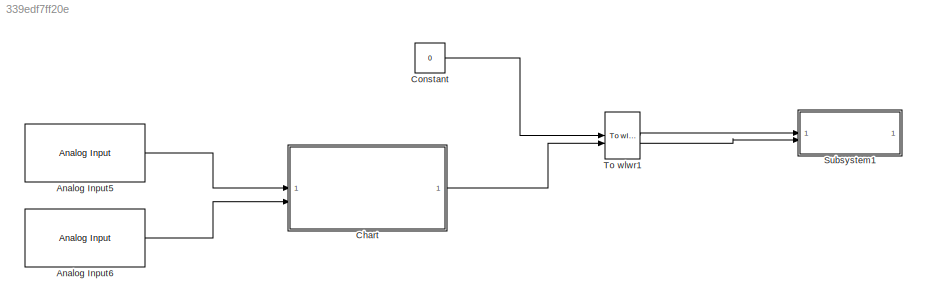
MODEL slx_339edf7ff20e
KIND model
CONFIG AbsTol = auto
CONFIG EnableMultiTasking = off
CONFIG FixedStep = auto
CONFIG MaxStep = auto
CONFIG MinStep = auto
CONFIG RelTol = 1e-3
CONFIG SampleTimeConstraint = Unconstrained
CONFIG SolverName = FixedStepAuto
CONFIG StartTime = 0.0
CONFIG StopTime = 10.0
BLOCK [Reference] Analog Input5  REF=arduinolib/Analog Input
  SourceBlock = arduinolib/Analog Input
  SourceType = Arduino Analog Input
BLOCK [Reference] Analog Input6  REF=arduinolib/Analog Input
  SourceBlock = arduinolib/Analog Input
  SourceType = Arduino Analog Input
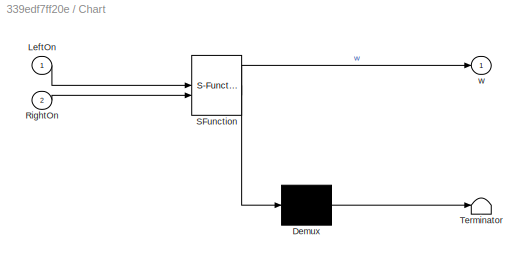
BLOCK [SubSystem] Chart
  ErrorFcn = Stateflow.Translate.translate
  PermitHierarchicalResolution = ExplicitOnly
  SFBlockType = Chart
  TreatAsAtomicUnit = on
BLOCK [Demux] Chart/ Demux 
  Outputs = 1
BLOCK [S-Function] Chart/ SFunction 
  EnableBusSupport = on
  FunctionName = sf_sfun
  PortCounts = [2 2]
  SFcnIsStateOwnerBlock = off
  SFunctionDeploymentMode = off
  Tag = Stateflow S-Function 3
BLOCK [Terminator] Chart/ Terminator 
BLOCK [Inport] Chart/LeftOn
BLOCK [Inport] Chart/RightOn
  Port = 2
BLOCK [Outport] Chart/w
BLOCK [Constant] Constant
  Value = 0
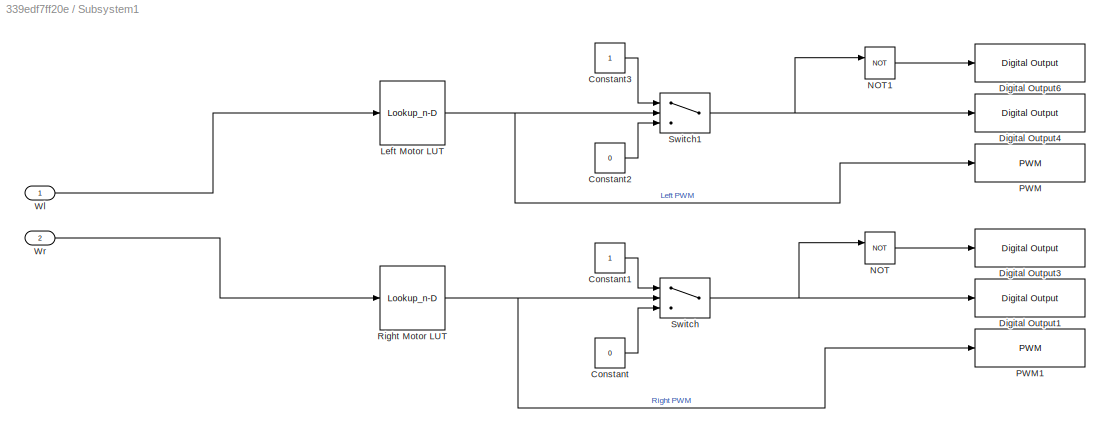
BLOCK [SubSystem] Subsystem1
  LibrarySourceBlock = hdlsllib/Ports &\nSubsystems/Subsystem
BLOCK [Constant] Subsystem1/Constant
  Value = 0
BLOCK [Constant] Subsystem1/Constant1
BLOCK [Constant] Subsystem1/Constant2
  Value = 0
BLOCK [Constant] Subsystem1/Constant3
BLOCK [Reference] Subsystem1/Digital Output1  REF=arduinolib/Digital Output
  SourceBlock = arduinolib/Digital Output
  SourceType = Arduino Digital Output
BLOCK [Reference] Subsystem1/Digital Output3  REF=arduinolib/Digital Output
  SourceBlock = arduinolib/Digital Output
  SourceType = Arduino Digital Output
BLOCK [Reference] Subsystem1/Digital Output4  REF=arduinolib/Digital Output
  SourceBlock = arduinolib/Digital Output
  SourceType = Arduino Digital Output
BLOCK [Reference] Subsystem1/Digital Output6  REF=arduinolib/Digital Output
  SourceBlock = arduinolib/Digital Output
  SourceType = Arduino Digital Output
BLOCK [Lookup_n-D] Subsystem1/Left Motor LUT
  BreakpointsForDimension1 = WheelSpeed
  ExtrapMethod = Clip
  InputPortMap = u0
  InternalRulePriority = Speed
  InterpMethod = Nearest
  NumberOfTableDimensions = 1
  RndMeth = Simplest
  Table = InputPWM
BLOCK [Logic] Subsystem1/NOT
  AllPortsSameDT = off
  IconShape = distinctive
  Operator = NOT
  OutDataTypeStr = boolean
BLOCK [Logic] Subsystem1/NOT1
  AllPortsSameDT = off
  IconShape = distinctive
  Operator = NOT
  OutDataTypeStr = boolean
BLOCK [Reference] Subsystem1/PWM  REF=arduinolib/PWM
  SourceBlock = arduinolib/PWM
  SourceType = Arduino PWM
BLOCK [Reference] Subsystem1/PWM1  REF=arduinolib/PWM
  SourceBlock = arduinolib/PWM
  SourceType = Arduino PWM
BLOCK [Lookup_n-D] Subsystem1/Right Motor LUT
  BreakpointsForDimension1 = WheelSpeed
  ExtrapMethod = Clip
  InputPortMap = u0
  InternalRulePriority = Speed
  InterpMethod = Nearest
  NumberOfTableDimensions = 1
  RndMeth = Simplest
  Table = InputPWM
BLOCK [Switch] Subsystem1/Switch
  Criteria = u2 > Threshold
  InputSameDT = off
  SaturateOnIntegerOverflow = off
BLOCK [Switch] Subsystem1/Switch1
  Criteria = u2 > Threshold
  InputSameDT = off
  SaturateOnIntegerOverflow = off
BLOCK [Inport] Subsystem1/Wl
BLOCK [Inport] Subsystem1/Wr
  Port = 2
BLOCK [Reference] To wlwr1  REF=mobileRoboticsTrainingLib/To wlwr
  SourceBlock = mobileRoboticsTrainingLib/To wlwr
  SourceProductName = Mobile Robotics Training Library
  SourceType = To wlwr
LINE Analog Input5:1 -> Chart:1
LINE Analog Input6:1 -> Chart:2
LINE Chart:1 -> To wlwr1:2
LINE Constant:1 -> To wlwr1:1
LINE Subsystem1/Constant1:1 -> Subsystem1/Switch:1
LINE Subsystem1/Constant2:1 -> Subsystem1/Switch1:3
LINE Subsystem1/Constant3:1 -> Subsystem1/Switch1:1
LINE Subsystem1/Constant:1 -> Subsystem1/Switch:3
NET Subsystem1/Left Motor LUT:1 -> Subsystem1/PWM:1, Subsystem1/Switch1:2
LINE Subsystem1/NOT1:1 -> Subsystem1/Digital Output6:1
LINE Subsystem1/NOT:1 -> Subsystem1/Digital Output3:1
NET Subsystem1/Right Motor LUT:1 -> Subsystem1/PWM1:1, Subsystem1/Switch:2
NET Subsystem1/Switch1:1 -> Subsystem1/Digital Output4:1, Subsystem1/NOT1:1
NET Subsystem1/Switch:1 -> Subsystem1/Digital Output1:1, Subsystem1/NOT:1
LINE Subsystem1/Wl:1 -> Subsystem1/Left Motor LUT:1
LINE Subsystem1/Wr:1 -> Subsystem1/Right Motor LUT:1
LINE To wlwr1:1 -> Subsystem1:1
LINE To wlwr1:2 -> Subsystem1:2
note: NET lines group one-source signal fan-out (src -> all destinations, sorted); 1:1 wires keep LINE
CHART Chart states=6 transitions=9
  STATE_LABEL 'Pause1\nentry:\nv=0.5\nw=0'
  STATE_LABEL 'Left1\nentry:\nv=0.5\nw=2'
  STATE_LABEL 'Pause\nentry:\nw=0'
  STATE_LABEL 'Left\nentry:\nw=0.5'
  STATE_LABEL 'Right1\nentry:\nv=0.5\nw=-2'
  STATE_LABEL 'Right\nentry:\nw=-0.5'
CHART  states=0 transitions=0
